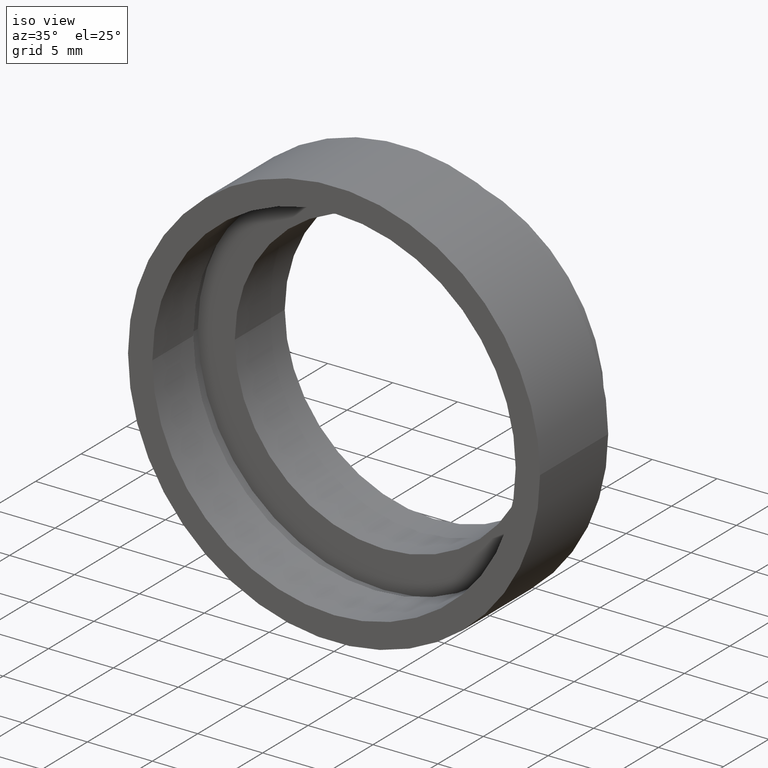
[diagram: clean part render]
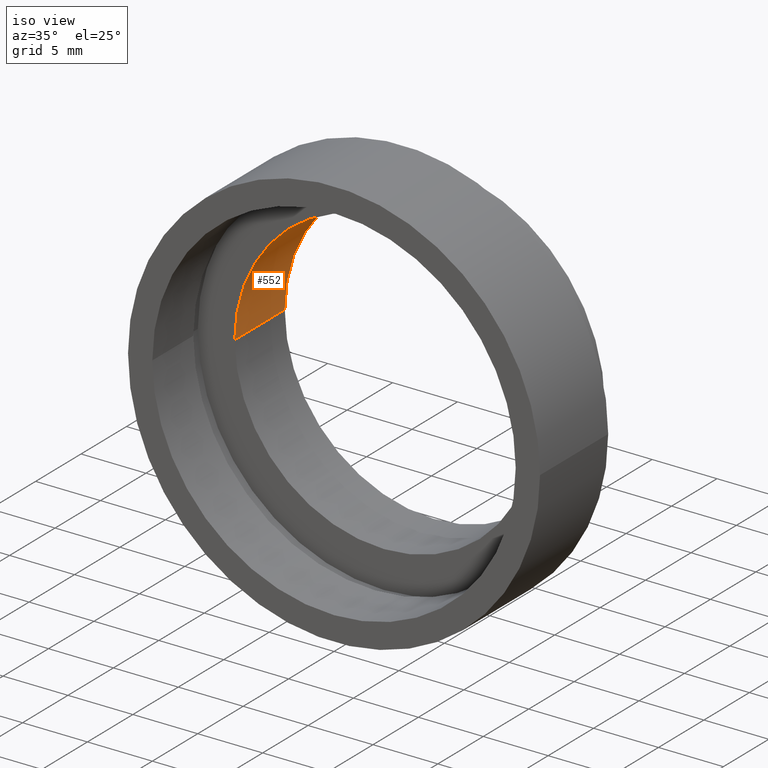
[diagram: same view with one face highlighted and labeled with its STEP entity id]
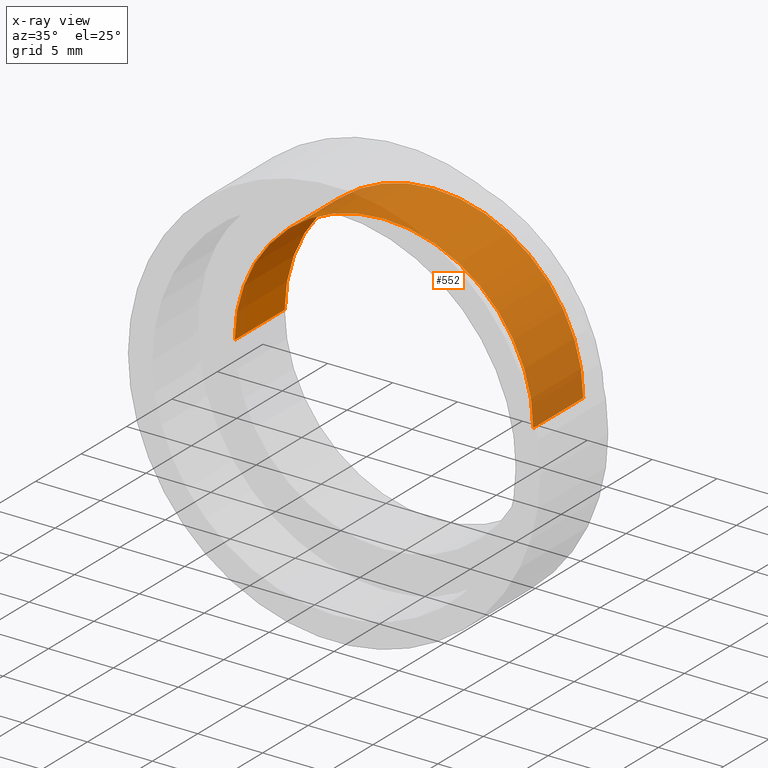
[diagram: x-ray of the same camera — body ghosted, the highlighted face saturated]
A machine part, iso view. The second image highlights one B-rep face of the part: STEP entity #552.
The next image is the same camera in x-ray: the body ghosted, the highlighted face saturated — about 81% of this face is hidden behind the body in this view.
In plain terms, the highlighted cylindrical surface (partial cylindrical patch) has radius 11.5 mm, axis along (-0, 1, -0).
Its self-contained STEP definition (entity closure, byte-faithful):
#21 = CARTESIAN_POINT ( 'NONE',  ( 0.0000000000000000000, 16.88601823708207700, 0.0000000000000000000 ) ) ;
#26 = EDGE_CURVE ( 'NONE', #422, #333, #98, .T. ) ;
#46 = CYLINDRICAL_SURFACE ( 'NONE', #604, 11.50000000000000000 ) ;
#66 = CARTESIAN_POINT ( 'NONE',  ( 11.50000000000000200, 10.99999999999999800, 1.408343819019456600E-015 ) ) ;
#68 = CARTESIAN_POINT ( 'NONE',  ( -11.49999999999999800, 5.499999999999996400, 0.0000000000000000000 ) ) ;
#98 = LINE ( 'NONE', #102, #239 ) ;
#102 = CARTESIAN_POINT ( 'NONE',  ( -11.50000000000000000, 16.88601823708207700, 0.0000000000000000000 ) ) ;
#112 = DIRECTION ( 'NONE',  ( -1.224646799147351000E-016, 1.000000000000000000, -0.0000000000000000000 ) ) ;
#153 = DIRECTION ( 'NONE',  ( -1.224646799147351000E-016, 1.000000000000000000, -0.0000000000000000000 ) ) ;
#154 = ORIENTED_EDGE ( 'NONE', *, *, #585, .T. ) ;
#159 = CARTESIAN_POINT ( 'NONE',  ( 7.208293393765502500E-016, 10.99999999999999600, 0.0000000000000000000 ) ) ;
#176 = CIRCLE ( 'NONE', #385, 11.50000000000000000 ) ;
#185 = EDGE_CURVE ( 'NONE', #394, #614, #330, .T. ) ;
#193 = CARTESIAN_POINT ( 'NONE',  ( 11.50000000000000000, 16.88601823708207700, 1.408343819019456200E-015 ) ) ;
#194 = DIRECTION ( 'NONE',  ( -1.000000000000000000, 0.0000000000000000000, 0.0000000000000000000 ) ) ;
#239 = VECTOR ( 'NONE', #250, 1000.000000000000000 ) ;
#249 = VECTOR ( 'NONE', #543, 1000.000000000000000 ) ;
#250 = DIRECTION ( 'NONE',  ( -1.224646799147351000E-016, 1.000000000000000000, -0.0000000000000000000 ) ) ;
#259 = CARTESIAN_POINT ( 'NONE',  ( 1.394385078907593000E-015, 5.499999999999998200, 0.0000000000000000000 ) ) ;
#270 = ORIENTED_EDGE ( 'NONE', *, *, #26, .T. ) ;
#289 = CIRCLE ( 'NONE', #410, 11.50000000000000200 ) ;
#320 = ORIENTED_EDGE ( 'NONE', *, *, #460, .F. ) ;
#330 = LINE ( 'NONE', #193, #249 ) ;
#333 = VERTEX_POINT ( 'NONE', #377 ) ;
#359 = DIRECTION ( 'NONE',  ( -1.000000000000000000, -1.508455196501571400E-016, 0.0000000000000000000 ) ) ;
#362 = DIRECTION ( 'NONE',  ( -1.000000000000000000, -1.508455196501571200E-016, 0.0000000000000000000 ) ) ;
#364 = FACE_OUTER_BOUND ( 'NONE', #546, .T. ) ;
#377 = CARTESIAN_POINT ( 'NONE',  ( -11.50000000000000200, 10.99999999999999500, 0.0000000000000000000 ) ) ;
#385 = AXIS2_PLACEMENT_3D ( 'NONE', #259, #153, #359 ) ;
#394 = VERTEX_POINT ( 'NONE', #566 ) ;
#410 = AXIS2_PLACEMENT_3D ( 'NONE', #159, #554, #362 ) ;
#422 = VERTEX_POINT ( 'NONE', #68 ) ;
#460 = EDGE_CURVE ( 'NONE', #422, #394, #176, .T. ) ;
#543 = DIRECTION ( 'NONE',  ( -1.224646799147351000E-016, 1.000000000000000000, -0.0000000000000000000 ) ) ;
#546 = EDGE_LOOP ( 'NONE', ( #574, #320, #270, #154 ) ) ;
#552 = ADVANCED_FACE ( 'NONE', ( #364 ), #46, .F. ) ;
#554 = DIRECTION ( 'NONE',  ( -1.224646799147351000E-016, 1.000000000000000000, -0.0000000000000000000 ) ) ;
#566 = CARTESIAN_POINT ( 'NONE',  ( 11.50000000000000200, 5.500000000000000000, 1.408343819019456600E-015 ) ) ;
#574 = ORIENTED_EDGE ( 'NONE', *, *, #185, .F. ) ;
#585 = EDGE_CURVE ( 'NONE', #333, #614, #289, .T. ) ;
#604 = AXIS2_PLACEMENT_3D ( 'NONE', #21, #112, #194 ) ;
#614 = VERTEX_POINT ( 'NONE', #66 ) ;